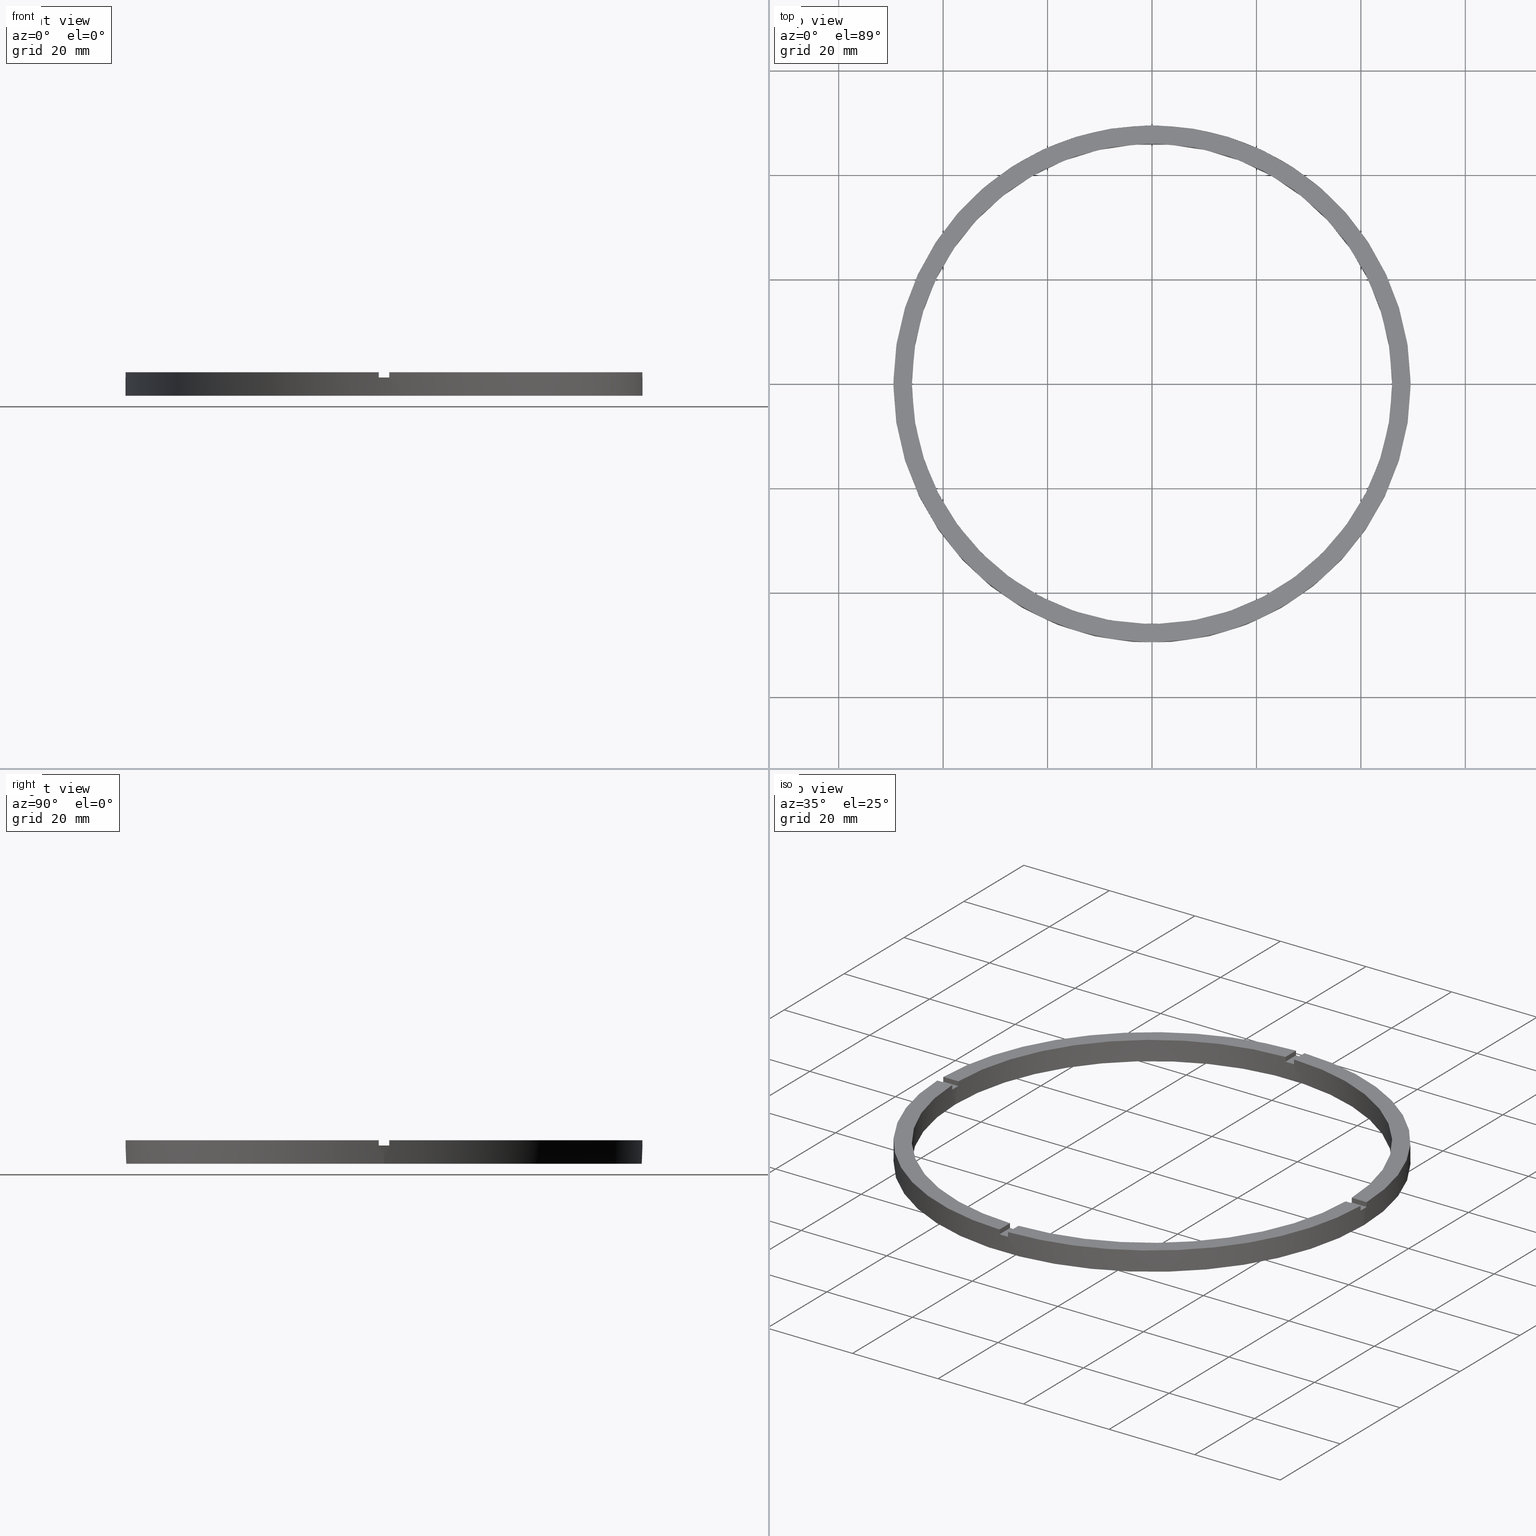
[diagram: canonical four-view strip — front | top / right | iso, engineering-drawing reading convention]
A machine part, canonical four-view strip (front | top / right | iso — engineering-drawing reading convention). The complete STEP part file that produces these views, byte-faithful:
ISO-10303-21;
HEADER;
FILE_DESCRIPTION (( 'STEP AP203' ),
    '1' );
FILE_NAME ('514202.step',
    '2024-12-26T02:47:34',
    ( 'MSI' ),
    ( '' ),
    'SwSTEP 2.0',
    'SolidWorks 2020',
    '' );
FILE_SCHEMA (( 'CONFIG_CONTROL_DESIGN' ));
ENDSEC;

DATA;
#1 = EDGE_CURVE ( 'NONE', #614, #634, #262, .T. ) ;
#2 = EDGE_LOOP ( 'NONE', ( #249, #684, #244, #5 ) ) ;
#3 = ORIENTED_EDGE ( 'NONE', *, *, #200, .F. ) ;
#4 = ORIENTED_EDGE ( 'NONE', *, *, #98, .T. ) ;
#5 = ORIENTED_EDGE ( 'NONE', *, *, #623, .F. ) ;
#6 = ORIENTED_EDGE ( 'NONE', *, *, #430, .T. ) ;
#7 = VERTEX_POINT ( 'NONE', #369 ) ;
#8 = PRODUCT_DEFINITION ( 'δ֪', '', #48, #263 ) ;
#9 = EDGE_LOOP ( 'NONE', ( #780, #115, #283, #127 ) ) ;
#10 = ADVANCED_BREP_SHAPE_REPRESENTATION ( '514202', ( #569, #740 ), #122 ) ;
#11 = DIRECTION ( 'NONE',  ( 0.000000000000000000, 0.000000000000000000, 1.000000000000000000 ) ) ;
#12 = LINE ( 'NONE', #435, #508 ) ;
#13 = CARTESIAN_POINT ( 'NONE',  ( 39.50000000000000000, -1.000000000000155875, 3.499999999999999556 ) ) ;
#14 = EDGE_LOOP ( 'NONE', ( #370, #530 ) ) ;
#15 = EDGE_LOOP ( 'NONE', ( #506, #765, #781, #270, #491, #246 ) ) ;
#16 = VECTOR ( 'NONE', #64, 1000.000000000000000 ) ;
#17 = ORIENTED_EDGE ( 'NONE', *, *, #602, .T. ) ;
#18 = COORDINATED_UNIVERSAL_TIME_OFFSET ( 8, 0, .AHEAD. ) ;
#19 = CARTESIAN_POINT ( 'NONE',  ( 46.00000000000000000, 5.633375276077824704E-15, 0.000000000000000000 ) ) ;
#20 = LOCAL_TIME ( 10, 47, 34.00000000000000000, #57 ) ;
#21 = CALENDAR_DATE ( 2024, 26, 12 ) ;
#22 = CC_DESIGN_SECURITY_CLASSIFICATION ( #269, ( #48 ) ) ;
#23 = ORIENTED_EDGE ( 'NONE', *, *, #480, .T. ) ;
#24 = VERTEX_POINT ( 'NONE', #621 ) ;
#25 = DATE_AND_TIME ( #524, #20 ) ;
#26 = ORIENTED_EDGE ( 'NONE', *, *, #469, .F. ) ;
#27 = LOCAL_TIME ( 10, 47, 34.00000000000000000, #548 ) ;
#28 = ORIENTED_EDGE ( 'NONE', *, *, #238, .F. ) ;
#29 = AXIS2_PLACEMENT_3D ( 'NONE', #514, #223, #214 ) ;
#30 = ORIENTED_EDGE ( 'NONE', *, *, #689, .F. ) ;
#31 = ORIENTED_EDGE ( 'NONE', *, *, #663, .F. ) ;
#32 = CARTESIAN_POINT ( 'NONE',  ( 0.9999999999999733546, 45.98912915026767223, 4.500000000000000000 ) ) ;
#33 = ORIENTED_EDGE ( 'NONE', *, *, #686, .F. ) ;
#34 = CARTESIAN_POINT ( 'NONE',  ( -49.50000000000000711, 0.000000000000000000, 0.000000000000000000 ) ) ;
#35 = DIRECTION ( 'NONE',  ( 1.301042606982605074E-16, -1.000000000000000000, 0.000000000000000000 ) ) ;
#36 = VERTEX_POINT ( 'NONE', #691 ) ;
#37 = EDGE_CURVE ( 'NONE', #638, #750, #271, .T. ) ;
#38 = APPROVAL_PERSON_ORGANIZATION ( #299, #287, #54 ) ;
#39 = EDGE_LOOP ( 'NONE', ( #538, #625, #248, #490 ) ) ;
#40 = EDGE_CURVE ( 'NONE', #169, #633, #507, .T. ) ;
#41 = LOCAL_TIME ( 10, 47, 34.00000000000000000, #306 ) ;
#42 = ORIENTED_EDGE ( 'NONE', *, *, #594, .T. ) ;
#43 = CARTESIAN_POINT ( 'NONE',  ( 39.50000000000000000, -1.000000000000155875, 4.500000000000000000 ) ) ;
#44 = ORGANIZATION ( 'δָ��', 'δָ��', '' ) ;
#45 = ORIENTED_EDGE ( 'NONE', *, *, #406, .T. ) ;
#46 = PERSON_AND_ORGANIZATION ( #355, #44 ) ;
#47 = AXIS2_PLACEMENT_3D ( 'NONE', #425, #534, #167 ) ;
#48 = PRODUCT_DEFINITION_FORMATION_WITH_SPECIFIED_SOURCE ( '�κ�', '', #591, .NOT_KNOWN. ) ;
#49 = PLANE ( 'NONE',  #329 ) ;
#50 = APPROVAL_DATE_TIME ( #519, #287 ) ;
#51 = CARTESIAN_POINT ( 'NONE',  ( 0.000000000000000000, 0.000000000000000000, 4.500000000000000000 ) ) ;
#52 = PERSON_AND_ORGANIZATION ( #355, #44 ) ;
#53 = DIRECTION ( 'NONE',  ( -0.000000000000000000, -0.000000000000000000, -1.000000000000000000 ) ) ;
#54 = APPROVAL_ROLE ( '' ) ;
#55 = PERSON_AND_ORGANIZATION ( #355, #44 ) ;
#56 = CARTESIAN_POINT ( 'NONE',  ( 45.98912915026767223, -1.000000000000155431, 4.500000000000000000 ) ) ;
#57 = COORDINATED_UNIVERSAL_TIME_OFFSET ( 8, 0, .AHEAD. ) ;
#58 = CARTESIAN_POINT ( 'NONE',  ( 0.000000000000000000, 0.000000000000000000, 3.499999999999999556 ) ) ;
#59 = DIRECTION ( 'NONE',  ( 1.000000000000000000, 0.000000000000000000, 0.000000000000000000 ) ) ;
#60 = APPROVAL_PERSON_ORGANIZATION ( #522, #725, #760 ) ;
#61 = DIRECTION ( 'NONE',  ( 0.000000000000000000, 0.000000000000000000, 1.000000000000000000 ) ) ;
#62 = AXIS2_PLACEMENT_3D ( 'NONE', #461, #106, #374 ) ;
#63 = CARTESIAN_POINT ( 'NONE',  ( -45.98912915026767223, -1.000000000000030420, 3.499999999999999556 ) ) ;
#64 = DIRECTION ( 'NONE',  ( -0.000000000000000000, -0.000000000000000000, -1.000000000000000000 ) ) ;
#65 = EDGE_CURVE ( 'NONE', #360, #742, #515, .T. ) ;
#66 = SHAPE_DEFINITION_REPRESENTATION ( #641, #10 ) ;
#67 = DIRECTION ( 'NONE',  ( -0.000000000000000000, -0.000000000000000000, -1.000000000000000000 ) ) ;
#68 = CALENDAR_DATE ( 2024, 26, 12 ) ;
#69 = CARTESIAN_POINT ( 'NONE',  ( -39.50000000000019185, 0.9999999999999708011, 3.499999999999999556 ) ) ;
#70 = CARTESIAN_POINT ( 'NONE',  ( 0.000000000000000000, 0.000000000000000000, 4.500000000000000000 ) ) ;
#71 = DIRECTION ( 'NONE',  ( -1.000000000000000000, 0.000000000000000000, 0.000000000000000000 ) ) ;
#72 = DIRECTION ( 'NONE',  ( 1.000000000000000000, 0.000000000000000000, 0.000000000000000000 ) ) ;
#73 = CIRCLE ( 'NONE', #776, 46.00000000000000000 ) ;
#74 = CARTESIAN_POINT ( 'NONE',  ( -46.00000000000000000, 0.000000000000000000, 3.499999999999999556 ) ) ;
#75 = EDGE_CURVE ( 'NONE', #221, #384, #12, .T. ) ;
#76 = LINE ( 'NONE', #196, #77 ) ;
#77 = VECTOR ( 'NONE', #605, 1000.000000000000000 ) ;
#78 = AXIS2_PLACEMENT_3D ( 'NONE', #550, #188, #35 ) ;
#79 = CARTESIAN_POINT ( 'NONE',  ( 0.000000000000000000, 0.000000000000000000, 3.499999999999999556 ) ) ;
#80 = PLANE ( 'NONE',  #95 ) ;
#81 = CARTESIAN_POINT ( 'NONE',  ( -1.000000000000026645, 49.48989795907849043, 4.500000000000000000 ) ) ;
#82 = AXIS2_PLACEMENT_3D ( 'NONE', #577, #376, #501 ) ;
#83 = CARTESIAN_POINT ( 'NONE',  ( 0.000000000000000000, 0.000000000000000000, 3.499999999999999556 ) ) ;
#84 = ADVANCED_FACE ( 'NONE', ( #268, #266 ), #309, .F. ) ;
#85 = CARTESIAN_POINT ( 'NONE',  ( 0.000000000000000000, 0.000000000000000000, 3.499999999999999556 ) ) ;
#86 = CARTESIAN_POINT ( 'NONE',  ( 0.9999999999999733546, 39.50000000000000711, 3.499999999999999556 ) ) ;
#87 = CARTESIAN_POINT ( 'NONE',  ( 0.000000000000000000, 0.000000000000000000, 3.499999999999999556 ) ) ;
#88 = DIRECTION ( 'NONE',  ( 1.000000000000000000, 6.505213034913025371E-17, 0.000000000000000000 ) ) ;
#89 = CARTESIAN_POINT ( 'NONE',  ( 0.000000000000000000, 0.000000000000000000, 0.000000000000000000 ) ) ;
#90 = EDGE_CURVE ( 'NONE', #302, #783, #511, .T. ) ;
#91 = CARTESIAN_POINT ( 'NONE',  ( -49.48989795907849043, -1.000000000000031308, 3.499999999999999556 ) ) ;
#92 = AXIS2_PLACEMENT_3D ( 'NONE', #599, #655, #311 ) ;
#93 = EDGE_CURVE ( 'NONE', #424, #757, #444, .T. ) ;
#94 = DIRECTION ( 'NONE',  ( 1.000000000000000000, 0.000000000000000000, -0.000000000000000000 ) ) ;
#95 = AXIS2_PLACEMENT_3D ( 'NONE', #230, #312, #337 ) ;
#96 = DIRECTION ( 'NONE',  ( 0.000000000000000000, -0.000000000000000000, 1.000000000000000000 ) ) ;
#97 = DIRECTION ( 'NONE',  ( 1.000000000000000000, 0.000000000000000000, 0.000000000000000000 ) ) ;
#98 = EDGE_CURVE ( 'NONE', #782, #364, #205, .T. ) ;
#99 = EDGE_CURVE ( 'NONE', #614, #633, #457, .T. ) ;
#100 = DIRECTION ( 'NONE',  ( 1.000000000000000000, 0.000000000000000000, 0.000000000000000000 ) ) ;
#101 = AXIS2_PLACEMENT_3D ( 'NONE', #222, #745, #668 ) ;
#102 = CARTESIAN_POINT ( 'NONE',  ( 0.000000000000000000, 0.000000000000000000, 3.499999999999999556 ) ) ;
#103 = CC_DESIGN_PERSON_AND_ORGANIZATION_ASSIGNMENT ( #529, #690, ( #8 ) ) ;
#104 = ADVANCED_FACE ( 'NONE', ( #191 ), #208, .T. ) ;
#105 = DIRECTION ( 'NONE',  ( -1.000000000000000000, -1.951563910473907735E-16, 0.000000000000000000 ) ) ;
#106 = DIRECTION ( 'NONE',  ( -6.505213034913025371E-17, 1.000000000000000000, 0.000000000000000000 ) ) ;
#107 = DATE_TIME_ROLE ( 'creation_date' ) ;
#108 = DIRECTION ( 'NONE',  ( 1.000000000000000000, -0.000000000000000000, 0.000000000000000000 ) ) ;
#109 = CARTESIAN_POINT ( 'NONE',  ( 0.9999999999998430145, -49.48989795907849043, 3.499999999999999556 ) ) ;
#110 = AXIS2_PLACEMENT_3D ( 'NONE', #711, #11, #596 ) ;
#111 = CARTESIAN_POINT ( 'NONE',  ( 0.9999999999999733546, 45.98912915026767223, 3.499999999999999556 ) ) ;
#112 = ORIENTED_EDGE ( 'NONE', *, *, #406, .F. ) ;
#113 = DIRECTION ( 'NONE',  ( 1.000000000000000000, 0.000000000000000000, 0.000000000000000000 ) ) ;
#114 = DIRECTION ( 'NONE',  ( 1.000000000000000000, 6.505213034913025371E-17, 0.000000000000000000 ) ) ;
#115 = ORIENTED_EDGE ( 'NONE', *, *, #124, .T. ) ;
#116 = EDGE_CURVE ( 'NONE', #661, #123, #186, .T. ) ;
#117 = AXIS2_PLACEMENT_3D ( 'NONE', #700, #443, #145 ) ;
#118 = CARTESIAN_POINT ( 'NONE',  ( -45.98912915026767223, 0.9999999999999696909, 4.500000000000000000 ) ) ;
#119 = EDGE_CURVE ( 'NONE', #424, #496, #193, .T. ) ;
#120 = ORIENTED_EDGE ( 'NONE', *, *, #124, .F. ) ;
#121 = AXIS2_PLACEMENT_3D ( 'NONE', #440, #497, #751 ) ;
#122 =( GEOMETRIC_REPRESENTATION_CONTEXT ( 3 ) GLOBAL_UNCERTAINTY_ASSIGNED_CONTEXT ( ( #316 ) ) GLOBAL_UNIT_ASSIGNED_CONTEXT ( ( #334, #492, #159 ) ) REPRESENTATION_CONTEXT ( 'NONE', 'WORKASPACE' ) );
#123 = VERTEX_POINT ( 'NONE', #626 ) ;
#124 = EDGE_CURVE ( 'NONE', #360, #750, #722, .T. ) ;
#125 = DIRECTION ( 'NONE',  ( 1.000000000000000000, 0.000000000000000000, -0.000000000000000000 ) ) ;
#126 = EDGE_CURVE ( 'NONE', #687, #504, #449, .T. ) ;
#127 = ORIENTED_EDGE ( 'NONE', *, *, #197, .F. ) ;
#128 = ORIENTED_EDGE ( 'NONE', *, *, #732, .T. ) ;
#129 = DIRECTION ( 'NONE',  ( 0.000000000000000000, 0.000000000000000000, 1.000000000000000000 ) ) ;
#130 = DIRECTION ( 'NONE',  ( 0.000000000000000000, 0.000000000000000000, 1.000000000000000000 ) ) ;
#131 = EDGE_LOOP ( 'NONE', ( #366, #4, #652, #613 ) ) ;
#132 = ORIENTED_EDGE ( 'NONE', *, *, #686, .T. ) ;
#133 = EDGE_LOOP ( 'NONE', ( #419, #240, #160, #227 ) ) ;
#134 = PLANE ( 'NONE',  #437 ) ;
#135 = DIRECTION ( 'NONE',  ( 0.000000000000000000, 0.000000000000000000, 1.000000000000000000 ) ) ;
#136 = APPLICATION_PROTOCOL_DEFINITION ( 'international standard', 'config_control_design', 1994, #211 ) ;
#137 = CARTESIAN_POINT ( 'NONE',  ( 0.000000000000000000, 0.000000000000000000, 3.499999999999999556 ) ) ;
#138 = CARTESIAN_POINT ( 'NONE',  ( 45.98912915026767223, -1.000000000000155431, 4.500000000000000000 ) ) ;
#139 = CYLINDRICAL_SURFACE ( 'NONE', #47, 46.00000000000000000 ) ;
#140 = ORIENTED_EDGE ( 'NONE', *, *, #343, .F. ) ;
#141 = LINE ( 'NONE', #597, #665 ) ;
#142 = CARTESIAN_POINT ( 'NONE',  ( -1.000000000000026645, 45.98912915026767223, 4.500000000000000000 ) ) ;
#143 = AXIS2_PLACEMENT_3D ( 'NONE', #137, #446, #566 ) ;
#144 = CARTESIAN_POINT ( 'NONE',  ( 0.000000000000000000, 0.000000000000000000, 3.499999999999999556 ) ) ;
#145 = DIRECTION ( 'NONE',  ( 1.000000000000000000, 0.000000000000000000, 0.000000000000000000 ) ) ;
#146 = PLANE ( 'NONE',  #82 ) ;
#147 = VERTEX_POINT ( 'NONE', #719 ) ;
#148 = VECTOR ( 'NONE', #114, 1000.000000000000000 ) ;
#149 = DIRECTION ( 'NONE',  ( 0.000000000000000000, 0.000000000000000000, 1.000000000000000000 ) ) ;
#150 = ORIENTED_EDGE ( 'NONE', *, *, #278, .T. ) ;
#151 = EDGE_CURVE ( 'NONE', #7, #631, #453, .T. ) ;
#152 = CIRCLE ( 'NONE', #773, 49.50000000000000711 ) ;
#153 = EDGE_CURVE ( 'NONE', #777, #36, #445, .T. ) ;
#154 = CARTESIAN_POINT ( 'NONE',  ( 0.9999999999998416822, -39.50000000000018474, 4.500000000000000000 ) ) ;
#155 = PERSON_AND_ORGANIZATION_ROLE ( 'design_owner' ) ;
#156 = AXIS2_PLACEMENT_3D ( 'NONE', #144, #347, #448 ) ;
#157 = EDGE_LOOP ( 'NONE', ( #286, #622, #150, #112 ) ) ;
#158 = CARTESIAN_POINT ( 'NONE',  ( 0.000000000000000000, 0.000000000000000000, 4.500000000000000000 ) ) ;
#159 =( NAMED_UNIT ( * ) SI_UNIT ( $, .STERADIAN. ) SOLID_ANGLE_UNIT ( ) );
#160 = ORIENTED_EDGE ( 'NONE', *, *, #291, .F. ) ;
#161 = CIRCLE ( 'NONE', #693, 49.50000000000000711 ) ;
#162 = EDGE_CURVE ( 'NONE', #7, #634, #201, .T. ) ;
#163 = ORIENTED_EDGE ( 'NONE', *, *, #729, .T. ) ;
#164 = ADVANCED_FACE ( 'NONE', ( #198 ), #539, .T. ) ;
#165 = ORIENTED_EDGE ( 'NONE', *, *, #327, .T. ) ;
#166 = ORIENTED_EDGE ( 'NONE', *, *, #90, .F. ) ;
#167 = DIRECTION ( 'NONE',  ( -1.000000000000000000, 0.000000000000000000, 0.000000000000000000 ) ) ;
#168 = ORIENTED_EDGE ( 'NONE', *, *, #402, .F. ) ;
#169 = VERTEX_POINT ( 'NONE', #19 ) ;
#170 = ORIENTED_EDGE ( 'NONE', *, *, #474, .T. ) ;
#171 = EDGE_CURVE ( 'NONE', #24, #762, #451, .T. ) ;
#172 = CARTESIAN_POINT ( 'NONE',  ( -49.50000000000000711, 0.000000000000000000, 3.499999999999999556 ) ) ;
#173 = VECTOR ( 'NONE', #567, 1000.000000000000000 ) ;
#174 = FACE_OUTER_BOUND ( 'NONE', #289, .T. ) ;
#175 = FACE_OUTER_BOUND ( 'NONE', #500, .T. ) ;
#176 = LINE ( 'NONE', #628, #180 ) ;
#177 = ADVANCED_FACE ( 'NONE', ( #395 ), #463, .T. ) ;
#178 = CC_DESIGN_APPROVAL ( #725, ( #269 ) ) ;
#179 = VECTOR ( 'NONE', #766, 1000.000000000000000 ) ;
#180 = VECTOR ( 'NONE', #217, 1000.000000000000000 ) ;
#181 = LINE ( 'NONE', #611, #459 ) ;
#182 = DIRECTION ( 'NONE',  ( 1.000000000000000000, 1.951563910473907735E-16, 0.000000000000000000 ) ) ;
#183 = LINE ( 'NONE', #713, #458 ) ;
#184 = VECTOR ( 'NONE', #746, 1000.000000000000000 ) ;
#185 = LINE ( 'NONE', #619, #442 ) ;
#186 = LINE ( 'NONE', #380, #717 ) ;
#187 = VECTOR ( 'NONE', #53, 1000.000000000000000 ) ;
#188 = DIRECTION ( 'NONE',  ( -1.000000000000000000, -1.301042606982605074E-16, 0.000000000000000000 ) ) ;
#189 = VECTOR ( 'NONE', #546, 1000.000000000000000 ) ;
#190 = VECTOR ( 'NONE', #618, 1000.000000000000000 ) ;
#191 = FACE_OUTER_BOUND ( 'NONE', #627, .T. ) ;
#192 = LINE ( 'NONE', #69, #426 ) ;
#193 = CIRCLE ( 'NONE', #388, 49.50000000000000711 ) ;
#194 = VECTOR ( 'NONE', #775, 1000.000000000000000 ) ;
#195 = DIRECTION ( 'NONE',  ( 1.000000000000000000, 0.000000000000000000, 0.000000000000000000 ) ) ;
#196 = CARTESIAN_POINT ( 'NONE',  ( -1.000000000000158318, -39.50000000000018474, 3.499999999999999556 ) ) ;
#197 = EDGE_CURVE ( 'NONE', #479, #774, #658, .T. ) ;
#198 = FACE_OUTER_BOUND ( 'NONE', #15, .T. ) ;
#199 = CARTESIAN_POINT ( 'NONE',  ( 0.000000000000000000, 0.000000000000000000, 3.499999999999999556 ) ) ;
#200 = EDGE_CURVE ( 'NONE', #479, #147, #375, .T. ) ;
#201 = LINE ( 'NONE', #531, #720 ) ;
#202 = FACE_OUTER_BOUND ( 'NONE', #292, .T. ) ;
#203 = VECTOR ( 'NONE', #135, 1000.000000000000000 ) ;
#204 = VECTOR ( 'NONE', #88, 1000.000000000000000 ) ;
#205 = LINE ( 'NONE', #56, #203 ) ;
#206 = CYLINDRICAL_SURFACE ( 'NONE', #320, 49.50000000000000711 ) ;
#207 = DIRECTION ( 'NONE',  ( 0.000000000000000000, 0.000000000000000000, -1.000000000000000000 ) ) ;
#208 = PLANE ( 'NONE',  #276 ) ;
#209 = AXIS2_PLACEMENT_3D ( 'NONE', #624, #382, #307 ) ;
#210 = LINE ( 'NONE', #493, #173 ) ;
#211 = APPLICATION_CONTEXT ( 'configuration controlled 3d designs of mechanical parts and assemblies' ) ;
#212 = LINE ( 'NONE', #386, #194 ) ;
#213 = FACE_OUTER_BOUND ( 'NONE', #250, .T. ) ;
#214 = DIRECTION ( 'NONE',  ( 1.000000000000000000, 0.000000000000000000, 0.000000000000000000 ) ) ;
#215 = PERSON_AND_ORGANIZATION_ROLE ( 'creator' ) ;
#216 = CARTESIAN_POINT ( 'NONE',  ( 46.00000000000000000, 5.633375276077824704E-15, 3.499999999999999556 ) ) ;
#217 = DIRECTION ( 'NONE',  ( 1.000000000000000000, 1.951563910473907735E-16, -0.000000000000000000 ) ) ;
#218 = ADVANCED_FACE ( 'NONE', ( #656 ), #559, .F. ) ;
#219 = DIRECTION ( 'NONE',  ( 0.000000000000000000, 1.000000000000000000, 0.000000000000000000 ) ) ;
#220 = APPROVAL_ROLE ( '' ) ;
#221 = VERTEX_POINT ( 'NONE', #608 ) ;
#222 = CARTESIAN_POINT ( 'NONE',  ( 0.000000000000000000, 0.000000000000000000, 4.500000000000000000 ) ) ;
#223 = DIRECTION ( 'NONE',  ( -0.000000000000000000, 0.000000000000000000, 1.000000000000000000 ) ) ;
#224 = PERSON_AND_ORGANIZATION_ROLE ( 'design_supplier' ) ;
#225 = AXIS2_PLACEMENT_3D ( 'NONE', #754, #149, #761 ) ;
#226 = CARTESIAN_POINT ( 'NONE',  ( -1.000000000000156986, -49.48989795907849043, 4.500000000000000000 ) ) ;
#227 = ORIENTED_EDGE ( 'NONE', *, *, #595, .F. ) ;
#228 = CARTESIAN_POINT ( 'NONE',  ( -49.48989795907849043, 0.9999999999999688027, 4.500000000000000000 ) ) ;
#229 = AXIS2_PLACEMENT_3D ( 'NONE', #509, #284, #678 ) ;
#230 = CARTESIAN_POINT ( 'NONE',  ( 0.000000000000000000, 0.000000000000000000, 4.500000000000000000 ) ) ;
#231 = VERTEX_POINT ( 'NONE', #245 ) ;
#232 = ORIENTED_EDGE ( 'NONE', *, *, #151, .F. ) ;
#233 = ORIENTED_EDGE ( 'NONE', *, *, #126, .F. ) ;
#234 = ADVANCED_FACE ( 'NONE', ( #657 ), #726, .F. ) ;
#235 = CARTESIAN_POINT ( 'NONE',  ( -1.000000000000158318, -39.50000000000018474, 4.500000000000000000 ) ) ;
#236 = EDGE_CURVE ( 'NONE', #302, #757, #152, .T. ) ;
#237 = ORIENTED_EDGE ( 'NONE', *, *, #278, .F. ) ;
#238 = EDGE_CURVE ( 'NONE', #777, #302, #396, .T. ) ;
#239 = ORIENTED_EDGE ( 'NONE', *, *, #349, .F. ) ;
#240 = ORIENTED_EDGE ( 'NONE', *, *, #391, .T. ) ;
#241 = ORIENTED_EDGE ( 'NONE', *, *, #197, .T. ) ;
#242 = ADVANCED_FACE ( 'NONE', ( #399 ), #139, .F. ) ;
#243 = CC_DESIGN_PERSON_AND_ORGANIZATION_ASSIGNMENT ( #541, #155, ( #591 ) ) ;
#244 = ORIENTED_EDGE ( 'NONE', *, *, #480, .F. ) ;
#245 = CARTESIAN_POINT ( 'NONE',  ( -1.000000000000026645, 45.98912915026767223, 3.499999999999999556 ) ) ;
#246 = ORIENTED_EDGE ( 'NONE', *, *, #294, .T. ) ;
#247 = EDGE_LOOP ( 'NONE', ( #659, #485, #510, #412, #140, #17 ) ) ;
#248 = ORIENTED_EDGE ( 'NONE', *, *, #607, .F. ) ;
#249 = ORIENTED_EDGE ( 'NONE', *, *, #607, .T. ) ;
#250 = EDGE_LOOP ( 'NONE', ( #502, #23, #383, #251 ) ) ;
#251 = ORIENTED_EDGE ( 'NONE', *, *, #767, .T. ) ;
#252 = ORIENTED_EDGE ( 'NONE', *, *, #583, .T. ) ;
#253 = ORIENTED_EDGE ( 'NONE', *, *, #65, .F. ) ;
#254 = ORIENTED_EDGE ( 'NONE', *, *, #116, .F. ) ;
#255 = ORIENTED_EDGE ( 'NONE', *, *, #430, .F. ) ;
#256 = ORIENTED_EDGE ( 'NONE', *, *, #595, .T. ) ;
#257 = AXIS2_PLACEMENT_3D ( 'NONE', #598, #734, #554 ) ;
#258 = VERTEX_POINT ( 'NONE', #470 ) ;
#259 = ORIENTED_EDGE ( 'NONE', *, *, #171, .T. ) ;
#260 = ORIENTED_EDGE ( 'NONE', *, *, #314, .T. ) ;
#261 = CARTESIAN_POINT ( 'NONE',  ( -1.000000000000026645, 39.50000000000000711, 3.499999999999999556 ) ) ;
#262 = CIRCLE ( 'NONE', #749, 46.00000000000000000 ) ;
#263 = DESIGN_CONTEXT ( 'detailed design', #377, 'design' ) ;
#264 = ORIENTED_EDGE ( 'NONE', *, *, #602, .F. ) ;
#265 = DIRECTION ( 'NONE',  ( 0.000000000000000000, 0.000000000000000000, 1.000000000000000000 ) ) ;
#266 = FACE_BOUND ( 'NONE', #664, .T. ) ;
#267 = ORIENTED_EDGE ( 'NONE', *, *, #99, .T. ) ;
#268 = FACE_OUTER_BOUND ( 'NONE', #14, .T. ) ;
#269 = SECURITY_CLASSIFICATION ( '', '', #516 ) ;
#270 = ORIENTED_EDGE ( 'NONE', *, *, #37, .F. ) ;
#271 = CIRCLE ( 'NONE', #225, 46.00000000000000000 ) ;
#272 = VERTEX_POINT ( 'NONE', #111 ) ;
#273 = ORIENTED_EDGE ( 'NONE', *, *, #291, .T. ) ;
#274 = EDGE_CURVE ( 'NONE', #757, #634, #141, .T. ) ;
#275 = DIRECTION ( 'NONE',  ( 1.000000000000000000, 0.000000000000000000, -0.000000000000000000 ) ) ;
#276 = AXIS2_PLACEMENT_3D ( 'NONE', #639, #344, #275 ) ;
#277 = LOCAL_TIME ( 10, 47, 34.00000000000000000, #18 ) ;
#278 = EDGE_CURVE ( 'NONE', #631, #496, #401, .T. ) ;
#279 = DATE_TIME_ROLE ( 'classification_date' ) ;
#280 = DATE_AND_TIME ( #21, #277 ) ;
#281 = ORIENTED_EDGE ( 'NONE', *, *, #651, .T. ) ;
#282 = AXIS2_PLACEMENT_3D ( 'NONE', #285, #129, #195 ) ;
#283 = ORIENTED_EDGE ( 'NONE', *, *, #325, .F. ) ;
#284 = DIRECTION ( 'NONE',  ( -0.000000000000000000, -0.000000000000000000, -1.000000000000000000 ) ) ;
#285 = CARTESIAN_POINT ( 'NONE',  ( 0.000000000000000000, 0.000000000000000000, 0.000000000000000000 ) ) ;
#286 = ORIENTED_EDGE ( 'NONE', *, *, #767, .F. ) ;
#287 = APPROVAL ( #620, 'δָ��' ) ;
#288 = DIRECTION ( 'NONE',  ( 1.000000000000000000, 0.000000000000000000, 0.000000000000000000 ) ) ;
#289 = EDGE_LOOP ( 'NONE', ( #295, #635, #680, #166, #28, #498, #675, #256, #482, #475, #3, #241 ) ) ;
#290 = ORIENTED_EDGE ( 'NONE', *, *, #151, .T. ) ;
#291 = EDGE_CURVE ( 'NONE', #762, #231, #403, .T. ) ;
#292 = EDGE_LOOP ( 'NONE', ( #359, #31, #42, #233, #647, #533, #45, #368, #478, #536, #650, #753 ) ) ;
#293 = DIRECTION ( 'NONE',  ( 0.000000000000000000, 0.000000000000000000, 1.000000000000000000 ) ) ;
#294 = EDGE_CURVE ( 'NONE', #782, #258, #666, .T. ) ;
#295 = ORIENTED_EDGE ( 'NONE', *, *, #345, .F. ) ;
#296 = CALENDAR_DATE ( 2024, 26, 12 ) ;
#297 = VERTEX_POINT ( 'NONE', #81 ) ;
#298 = ORIENTED_EDGE ( 'NONE', *, *, #200, .T. ) ;
#299 = PERSON_AND_ORGANIZATION ( #355, #44 ) ;
#300 = ORIENTED_EDGE ( 'NONE', *, *, #99, .F. ) ;
#301 = CARTESIAN_POINT ( 'NONE',  ( 0.000000000000000000, 0.000000000000000000, 0.000000000000000000 ) ) ;
#302 = VERTEX_POINT ( 'NONE', #172 ) ;
#303 = ORIENTED_EDGE ( 'NONE', *, *, #651, .F. ) ;
#304 = DIRECTION ( 'NONE',  ( -1.301042606982605074E-16, 1.000000000000000000, -0.000000000000000000 ) ) ;
#305 = DIRECTION ( 'NONE',  ( 1.000000000000000000, 0.000000000000000000, 0.000000000000000000 ) ) ;
#306 = COORDINATED_UNIVERSAL_TIME_OFFSET ( 8, 0, .AHEAD. ) ;
#307 = DIRECTION ( 'NONE',  ( -1.000000000000000000, -1.951563910473907735E-16, 0.000000000000000000 ) ) ;
#308 = APPROVAL_STATUS ( 'not_yet_approved' ) ;
#309 = PLANE ( 'NONE',  #584 ) ;
#310 = COORDINATED_UNIVERSAL_TIME_OFFSET ( 8, 0, .AHEAD. ) ;
#311 = DIRECTION ( 'NONE',  ( 1.000000000000000000, 0.000000000000000000, -0.000000000000000000 ) ) ;
#312 = DIRECTION ( 'NONE',  ( 0.000000000000000000, 0.000000000000000000, 1.000000000000000000 ) ) ;
#313 = ADVANCED_FACE ( 'NONE', ( #413 ), #352, .F. ) ;
#314 = EDGE_CURVE ( 'NONE', #272, #231, #698, .T. ) ;
#315 = DIRECTION ( 'NONE',  ( -0.000000000000000000, -1.000000000000000000, -0.000000000000000000 ) ) ;
#316 = UNCERTAINTY_MEASURE_WITH_UNIT (LENGTH_MEASURE( 1.000000000000000082E-05 ), #334, 'distance_accuracy_value', 'NONE');
#317 = DIRECTION ( 'NONE',  ( 1.000000000000000000, 1.301042606982605074E-16, 0.000000000000000000 ) ) ;
#318 = EDGE_CURVE ( 'NONE', #272, #24, #706, .T. ) ;
#319 = EDGE_CURVE ( 'NONE', #646, #367, #418, .T. ) ;
#320 = AXIS2_PLACEMENT_3D ( 'NONE', #759, #67, #404 ) ;
#321 = FACE_OUTER_BOUND ( 'NONE', #9, .T. ) ;
#322 = LINE ( 'NONE', #32, #324 ) ;
#323 = FACE_OUTER_BOUND ( 'NONE', #133, .T. ) ;
#324 = VECTOR ( 'NONE', #330, 1000.000000000000000 ) ;
#325 = EDGE_CURVE ( 'NONE', #774, #750, #683, .T. ) ;
#326 = DIRECTION ( 'NONE',  ( 1.000000000000000000, 0.000000000000000000, 0.000000000000000000 ) ) ;
#327 = EDGE_CURVE ( 'NONE', #297, #36, #673, .T. ) ;
#328 = DIRECTION ( 'NONE',  ( -1.301042606982605074E-16, 1.000000000000000000, -0.000000000000000000 ) ) ;
#329 = AXIS2_PLACEMENT_3D ( 'NONE', #670, #741, #428 ) ;
#330 = DIRECTION ( 'NONE',  ( 0.000000000000000000, 0.000000000000000000, 1.000000000000000000 ) ) ;
#331 = DIRECTION ( 'NONE',  ( 0.000000000000000000, 0.000000000000000000, 1.000000000000000000 ) ) ;
#332 = CARTESIAN_POINT ( 'NONE',  ( -39.50000000000019185, -1.000000000000029310, 3.499999999999999556 ) ) ;
#333 = CC_DESIGN_DATE_AND_TIME_ASSIGNMENT ( #280, #279, ( #269 ) ) ;
#335 = DIRECTION ( 'NONE',  ( 0.000000000000000000, 0.000000000000000000, 1.000000000000000000 ) ) ;
#334 =( LENGTH_UNIT ( ) NAMED_UNIT ( * ) SI_UNIT ( .MILLI., .METRE. ) );
#336 = DIRECTION ( 'NONE',  ( 0.000000000000000000, 0.000000000000000000, 1.000000000000000000 ) ) ;
#337 = DIRECTION ( 'NONE',  ( 1.000000000000000000, 0.000000000000000000, -0.000000000000000000 ) ) ;
#338 = CARTESIAN_POINT ( 'NONE',  ( 0.9999999999998425704, -45.98912915026767934, 4.500000000000000000 ) ) ;
#339 = DIRECTION ( 'NONE',  ( 0.000000000000000000, 0.000000000000000000, 1.000000000000000000 ) ) ;
#340 = CARTESIAN_POINT ( 'NONE',  ( 0.9999999999998430145, -49.48989795907849043, 4.500000000000000000 ) ) ;
#341 = CARTESIAN_POINT ( 'NONE',  ( -49.48989795907849043, -1.000000000000031308, 4.500000000000000000 ) ) ;
#342 = CARTESIAN_POINT ( 'NONE',  ( 39.50000000000000000, 0.9999999999998441247, 3.499999999999999556 ) ) ;
#343 = EDGE_CURVE ( 'NONE', #643, #614, #677, .T. ) ;
#344 = DIRECTION ( 'NONE',  ( 0.000000000000000000, 0.000000000000000000, 1.000000000000000000 ) ) ;
#345 = EDGE_CURVE ( 'NONE', #221, #774, #161, .T. ) ;
#346 = DIRECTION ( 'NONE',  ( 0.000000000000000000, 0.000000000000000000, 1.000000000000000000 ) ) ;
#347 = DIRECTION ( 'NONE',  ( 0.000000000000000000, 0.000000000000000000, 1.000000000000000000 ) ) ;
#348 = PERSON_AND_ORGANIZATION_ROLE ( 'classification_officer' ) ;
#349 = EDGE_CURVE ( 'NONE', #297, #495, #438, .T. ) ;
#350 = DIRECTION ( 'NONE',  ( -0.000000000000000000, -0.000000000000000000, -1.000000000000000000 ) ) ;
#351 = CC_DESIGN_PERSON_AND_ORGANIZATION_ASSIGNMENT ( #55, #348, ( #269 ) ) ;
#352 = PLANE ( 'NONE',  #433 ) ;
#353 = EDGE_CURVE ( 'NONE', #384, #783, #420, .T. ) ;
#354 = DIRECTION ( 'NONE',  ( 0.000000000000000000, 0.000000000000000000, 1.000000000000000000 ) ) ;
#355 = PERSON ( 'δָ��', 'δָ��', 'δָ��', ('δָ��'), ('δָ��'), ('δָ��') ) ;
#356 = AXIS2_PLACEMENT_3D ( 'NONE', #79, #354, #125 ) ;
#357 = ORIENTED_EDGE ( 'NONE', *, *, #343, .T. ) ;
#358 = CARTESIAN_POINT ( 'NONE',  ( -1.000000000000157430, -45.98912915026767223, 3.499999999999999556 ) ) ;
#359 = ORIENTED_EDGE ( 'NONE', *, *, #75, .F. ) ;
#360 = VERTEX_POINT ( 'NONE', #373 ) ;
#361 = CARTESIAN_POINT ( 'NONE',  ( -1.000000000000157430, -45.98912915026767223, 4.500000000000000000 ) ) ;
#362 = ORIENTED_EDGE ( 'NONE', *, *, #119, .T. ) ;
#363 = CARTESIAN_POINT ( 'NONE',  ( 49.48989795907849043, 0.9999999999998447908, 3.499999999999999556 ) ) ;
#364 = VERTEX_POINT ( 'NONE', #138 ) ;
#365 = DIRECTION ( 'NONE',  ( 1.000000000000000000, 0.000000000000000000, 0.000000000000000000 ) ) ;
#366 = ORIENTED_EDGE ( 'NONE', *, *, #294, .F. ) ;
#367 = VERTEX_POINT ( 'NONE', #109 ) ;
#368 = ORIENTED_EDGE ( 'NONE', *, *, #119, .F. ) ;
#369 = CARTESIAN_POINT ( 'NONE',  ( -45.98912915026767223, -1.000000000000030420, 4.500000000000000000 ) ) ;
#370 = ORIENTED_EDGE ( 'NONE', *, *, #387, .F. ) ;
#371 = CARTESIAN_POINT ( 'NONE',  ( 0.9999999999998416822, -39.50000000000018474, 3.499999999999999556 ) ) ;
#372 = ORIENTED_EDGE ( 'NONE', *, *, #764, .F. ) ;
#373 = CARTESIAN_POINT ( 'NONE',  ( 45.98912915026767934, 0.9999999999998445688, 4.500000000000000000 ) ) ;
#374 = DIRECTION ( 'NONE',  ( -1.000000000000000000, -6.505213034913025371E-17, 0.000000000000000000 ) ) ;
#375 = CIRCLE ( 'NONE', #257, 49.50000000000000711 ) ;
#376 = DIRECTION ( 'NONE',  ( -0.000000000000000000, 0.000000000000000000, 1.000000000000000000 ) ) ;
#377 = APPLICATION_CONTEXT ( 'configuration controlled 3d designs of mechanical parts and assemblies' ) ;
#378 = PLANE ( 'NONE',  #209 ) ;
#379 = EDGE_LOOP ( 'NONE', ( #239, #165, #30, #303 ) ) ;
#380 = CARTESIAN_POINT ( 'NONE',  ( 0.9999999999998425704, -45.98912915026767934, 4.500000000000000000 ) ) ;
#381 = DIRECTION ( 'NONE',  ( -1.301042606982605074E-16, 1.000000000000000000, 0.000000000000000000 ) ) ;
#382 = DIRECTION ( 'NONE',  ( -1.951563910473907735E-16, 1.000000000000000000, 0.000000000000000000 ) ) ;
#383 = ORIENTED_EDGE ( 'NONE', *, *, #732, .F. ) ;
#384 = VERTEX_POINT ( 'NONE', #464 ) ;
#385 = ADVANCED_FACE ( 'NONE', ( #414 ), #80, .T. ) ;
#386 = CARTESIAN_POINT ( 'NONE',  ( 39.50000000000000000, 0.9999999999998441247, 4.500000000000000000 ) ) ;
#387 = EDGE_CURVE ( 'NONE', #783, #384, #415, .T. ) ;
#388 = AXIS2_PLACEMENT_3D ( 'NONE', #432, #336, #512 ) ;
#389 = CARTESIAN_POINT ( 'NONE',  ( -46.00000000000000000, 0.000000000000000000, 4.500000000000000000 ) ) ;
#390 = DIRECTION ( 'NONE',  ( 1.000000000000000000, 0.000000000000000000, 0.000000000000000000 ) ) ;
#391 = EDGE_CURVE ( 'NONE', #495, #231, #681, .T. ) ;
#392 = CARTESIAN_POINT ( 'NONE',  ( 0.000000000000000000, 0.000000000000000000, 4.500000000000000000 ) ) ;
#393 = CARTESIAN_POINT ( 'NONE',  ( 0.000000000000000000, 0.000000000000000000, 3.499999999999999556 ) ) ;
#394 = AXIS2_PLACEMENT_3D ( 'NONE', #199, #265, #365 ) ;
#395 = FACE_OUTER_BOUND ( 'NONE', #247, .T. ) ;
#396 = CIRCLE ( 'NONE', #394, 49.50000000000000711 ) ;
#397 = DIRECTION ( 'NONE',  ( 0.000000000000000000, 0.000000000000000000, 1.000000000000000000 ) ) ;
#398 = ORIENTED_EDGE ( 'NONE', *, *, #153, .F. ) ;
#399 = FACE_OUTER_BOUND ( 'NONE', #484, .T. ) ;
#400 = ORIENTED_EDGE ( 'NONE', *, *, #65, .T. ) ;
#401 = LINE ( 'NONE', #235, #660 ) ;
#402 = EDGE_CURVE ( 'NONE', #24, #147, #712, .T. ) ;
#403 = LINE ( 'NONE', #407, #411 ) ;
#404 = DIRECTION ( 'NONE',  ( -1.000000000000000000, 0.000000000000000000, 0.000000000000000000 ) ) ;
#405 = DIRECTION ( 'NONE',  ( 0.000000000000000000, 0.000000000000000000, 1.000000000000000000 ) ) ;
#406 = EDGE_CURVE ( 'NONE', #646, #496, #694, .T. ) ;
#407 = CARTESIAN_POINT ( 'NONE',  ( -1.000000000000026645, 39.50000000000000711, 3.499999999999999556 ) ) ;
#408 = ORIENTED_EDGE ( 'NONE', *, *, #93, .F. ) ;
#409 = AXIS2_PLACEMENT_3D ( 'NONE', #301, #705, #288 ) ;
#410 = ORIENTED_EDGE ( 'NONE', *, *, #469, .T. ) ;
#411 = VECTOR ( 'NONE', #315, 1000.000000000000000 ) ;
#412 = ORIENTED_EDGE ( 'NONE', *, *, #1, .F. ) ;
#413 = FACE_OUTER_BOUND ( 'NONE', #2, .T. ) ;
#414 = FACE_OUTER_BOUND ( 'NONE', #39, .T. ) ;
#415 = CIRCLE ( 'NONE', #121, 49.50000000000000711 ) ;
#416 = ORIENTED_EDGE ( 'NONE', *, *, #729, .F. ) ;
#417 = ORIENTED_EDGE ( 'NONE', *, *, #676, .T. ) ;
#418 = CIRCLE ( 'NONE', #29, 49.50000000000000711 ) ;
#419 = ORIENTED_EDGE ( 'NONE', *, *, #349, .T. ) ;
#420 = CIRCLE ( 'NONE', #409, 49.50000000000000711 ) ;
#421 = ORIENTED_EDGE ( 'NONE', *, *, #98, .F. ) ;
#422 = PLANE ( 'NONE',  #549 ) ;
#423 = ORIENTED_EDGE ( 'NONE', *, *, #612, .F. ) ;
#424 = VERTEX_POINT ( 'NONE', #645 ) ;
#425 = CARTESIAN_POINT ( 'NONE',  ( 0.000000000000000000, 0.000000000000000000, 4.500000000000000000 ) ) ;
#426 = VECTOR ( 'NONE', #105, 1000.000000000000000 ) ;
#427 = LINE ( 'NONE', #43, #204 ) ;
#428 = DIRECTION ( 'NONE',  ( 1.000000000000000000, 6.505213034913025371E-17, 0.000000000000000000 ) ) ;
#429 = LINE ( 'NONE', #702, #723 ) ;
#430 = EDGE_CURVE ( 'NONE', #638, #169, #183, .T. ) ;
#431 = PLANE ( 'NONE',  #101 ) ;
#432 = CARTESIAN_POINT ( 'NONE',  ( 0.000000000000000000, 0.000000000000000000, 4.500000000000000000 ) ) ;
#433 = AXIS2_PLACEMENT_3D ( 'NONE', #468, #317, #381 ) ;
#434 = CIRCLE ( 'NONE', #282, 46.00000000000000000 ) ;
#435 = CARTESIAN_POINT ( 'NONE',  ( 49.50000000000000711, 6.062001655779399300E-15, 4.500000000000000000 ) ) ;
#436 = LINE ( 'NONE', #371, #724 ) ;
#437 = AXIS2_PLACEMENT_3D ( 'NONE', #261, #603, #331 ) ;
#438 = LINE ( 'NONE', #460, #708 ) ;
#439 = CIRCLE ( 'NONE', #736, 46.00000000000000000 ) ;
#440 = CARTESIAN_POINT ( 'NONE',  ( 0.000000000000000000, 0.000000000000000000, 0.000000000000000000 ) ) ;
#441 = VECTOR ( 'NONE', #561, 1000.000000000000000 ) ;
#442 = VECTOR ( 'NONE', #503, 1000.000000000000000 ) ;
#443 = DIRECTION ( 'NONE',  ( 0.000000000000000000, 0.000000000000000000, 1.000000000000000000 ) ) ;
#444 = LINE ( 'NONE', #341, #441 ) ;
#445 = LINE ( 'NONE', #228, #714 ) ;
#446 = DIRECTION ( 'NONE',  ( 0.000000000000000000, -0.000000000000000000, 1.000000000000000000 ) ) ;
#447 = FACE_OUTER_BOUND ( 'NONE', #379, .T. ) ;
#448 = DIRECTION ( 'NONE',  ( 1.000000000000000000, 0.000000000000000000, 0.000000000000000000 ) ) ;
#449 = CIRCLE ( 'NONE', #110, 49.50000000000000711 ) ;
#450 = APPROVAL ( #308, 'δָ��' ) ;
#451 = CIRCLE ( 'NONE', #572, 49.50000000000000711 ) ;
#452 = CARTESIAN_POINT ( 'NONE',  ( 0.000000000000000000, 0.000000000000000000, 4.500000000000000000 ) ) ;
#453 = CIRCLE ( 'NONE', #715, 46.00000000000000000 ) ;
#454 = LINE ( 'NONE', #118, #189 ) ;
#455 = DIRECTION ( 'NONE',  ( -0.000000000000000000, -0.000000000000000000, -1.000000000000000000 ) ) ;
#456 = CYLINDRICAL_SURFACE ( 'NONE', #229, 49.50000000000000711 ) ;
#457 = LINE ( 'NONE', #389, #728 ) ;
#458 = VECTOR ( 'NONE', #688, 1000.000000000000000 ) ;
#459 = VECTOR ( 'NONE', #747, 1000.000000000000000 ) ;
#460 = CARTESIAN_POINT ( 'NONE',  ( -1.000000000000026645, 39.50000000000000711, 4.500000000000000000 ) ) ;
#461 = CARTESIAN_POINT ( 'NONE',  ( 39.50000000000000000, 0.9999999999998441247, 3.499999999999999556 ) ) ;
#462 = FACE_OUTER_BOUND ( 'NONE', #523, .T. ) ;
#463 = PLANE ( 'NONE',  #356 ) ;
#464 = CARTESIAN_POINT ( 'NONE',  ( 49.50000000000000711, 6.062001655779399300E-15, 0.000000000000000000 ) ) ;
#465 = ADVANCED_FACE ( 'NONE', ( #174 ), #206, .T. ) ;
#466 = AXIS2_PLACEMENT_3D ( 'NONE', #51, #679, #94 ) ;
#467 = DIRECTION ( 'NONE',  ( 0.000000000000000000, 0.000000000000000000, 1.000000000000000000 ) ) ;
#468 = CARTESIAN_POINT ( 'NONE',  ( 0.9999999999998416822, -39.50000000000018474, 3.499999999999999556 ) ) ;
#469 = EDGE_CURVE ( 'NONE', #643, #471, #454, .T. ) ;
#470 = CARTESIAN_POINT ( 'NONE',  ( 49.48989795907849043, -1.000000000000155209, 3.499999999999999556 ) ) ;
#471 = VERTEX_POINT ( 'NONE', #526 ) ;
#472 = AXIS2_PLACEMENT_3D ( 'NONE', #58, #397, #579 ) ;
#473 = CC_DESIGN_APPROVAL ( #450, ( #8 ) ) ;
#474 = EDGE_CURVE ( 'NONE', #661, #364, #716, .T. ) ;
#475 = ORIENTED_EDGE ( 'NONE', *, *, #402, .T. ) ;
#476 = ORIENTED_EDGE ( 'NONE', *, *, #274, .F. ) ;
#477 = ORIENTED_EDGE ( 'NONE', *, *, #1, .T. ) ;
#478 = ORIENTED_EDGE ( 'NONE', *, *, #93, .T. ) ;
#479 = VERTEX_POINT ( 'NONE', #520 ) ;
#480 = EDGE_CURVE ( 'NONE', #367, #123, #436, .T. ) ;
#481 = CARTESIAN_POINT ( 'NONE',  ( -1.000000000000026645, 49.48989795907849043, 3.499999999999999556 ) ) ;
#482 = ORIENTED_EDGE ( 'NONE', *, *, #171, .F. ) ;
#483 = CARTESIAN_POINT ( 'NONE',  ( 45.98912915026767223, -1.000000000000155431, 3.499999999999999556 ) ) ;
#484 = EDGE_LOOP ( 'NONE', ( #255, #653, #120, #400, #416, #260, #525, #281, #26, #357, #267, #667 ) ) ;
#485 = ORIENTED_EDGE ( 'NONE', *, *, #236, .T. ) ;
#486 = ORIENTED_EDGE ( 'NONE', *, *, #162, .T. ) ;
#487 = DIRECTION ( 'NONE',  ( -0.000000000000000000, 0.000000000000000000, 1.000000000000000000 ) ) ;
#488 = EDGE_LOOP ( 'NONE', ( #132, #486, #476, #408 ) ) ;
#489 = ORIENTED_EDGE ( 'NONE', *, *, #583, .F. ) ;
#490 = ORIENTED_EDGE ( 'NONE', *, *, #126, .T. ) ;
#491 = ORIENTED_EDGE ( 'NONE', *, *, #676, .F. ) ;
#492 =( NAMED_UNIT ( * ) PLANE_ANGLE_UNIT ( ) SI_UNIT ( $, .RADIAN. ) );
#493 = CARTESIAN_POINT ( 'NONE',  ( 49.48989795907849043, -1.000000000000155209, 4.500000000000000000 ) ) ;
#494 = ORIENTED_EDGE ( 'NONE', *, *, #689, .T. ) ;
#495 = VERTEX_POINT ( 'NONE', #604 ) ;
#496 = VERTEX_POINT ( 'NONE', #226 ) ;
#497 = DIRECTION ( 'NONE',  ( 0.000000000000000000, 0.000000000000000000, 1.000000000000000000 ) ) ;
#498 = ORIENTED_EDGE ( 'NONE', *, *, #153, .T. ) ;
#499 = DIRECTION ( 'NONE',  ( 1.000000000000000000, 0.000000000000000000, 0.000000000000000000 ) ) ;
#500 = EDGE_LOOP ( 'NONE', ( #259, #273, #518, #513 ) ) ;
#501 = DIRECTION ( 'NONE',  ( 1.000000000000000000, 0.000000000000000000, 0.000000000000000000 ) ) ;
#502 = ORIENTED_EDGE ( 'NONE', *, *, #319, .T. ) ;
#503 = DIRECTION ( 'NONE',  ( -1.000000000000000000, -1.951563910473907735E-16, 0.000000000000000000 ) ) ;
#504 = VERTEX_POINT ( 'NONE', #606 ) ;
#505 = ADVANCED_FACE ( 'NONE', ( #447 ), #431, .T. ) ;
#506 = ORIENTED_EDGE ( 'NONE', *, *, #663, .T. ) ;
#507 = CIRCLE ( 'NONE', #674, 46.00000000000000000 ) ;
#508 = VECTOR ( 'NONE', #563, 1000.000000000000000 ) ;
#509 = CARTESIAN_POINT ( 'NONE',  ( 0.000000000000000000, 0.000000000000000000, 4.500000000000000000 ) ) ;
#510 = ORIENTED_EDGE ( 'NONE', *, *, #274, .T. ) ;
#511 = LINE ( 'NONE', #640, #16 ) ;
#512 = DIRECTION ( 'NONE',  ( 1.000000000000000000, 0.000000000000000000, 0.000000000000000000 ) ) ;
#513 = ORIENTED_EDGE ( 'NONE', *, *, #318, .T. ) ;
#514 = CARTESIAN_POINT ( 'NONE',  ( 0.000000000000000000, 0.000000000000000000, 3.499999999999999556 ) ) ;
#515 = CIRCLE ( 'NONE', #117, 46.00000000000000000 ) ;
#516 = SECURITY_CLASSIFICATION_LEVEL ( 'unclassified' ) ;
#517 = ORIENTED_EDGE ( 'NONE', *, *, #318, .F. ) ;
#518 = ORIENTED_EDGE ( 'NONE', *, *, #314, .F. ) ;
#519 = DATE_AND_TIME ( #544, #41 ) ;
#520 = CARTESIAN_POINT ( 'NONE',  ( 49.48989795907849043, 0.9999999999998447908, 4.500000000000000000 ) ) ;
#521 = DIRECTION ( 'NONE',  ( -0.000000000000000000, -0.000000000000000000, -1.000000000000000000 ) ) ;
#522 = PERSON_AND_ORGANIZATION ( #355, #44 ) ;
#523 = EDGE_LOOP ( 'NONE', ( #264, #410, #494, #398 ) ) ;
#524 = CALENDAR_DATE ( 2024, 26, 12 ) ;
#525 = ORIENTED_EDGE ( 'NONE', *, *, #391, .F. ) ;
#526 = CARTESIAN_POINT ( 'NONE',  ( -45.98912915026767223, 0.9999999999999696909, 4.500000000000000000 ) ) ;
#527 = ORIENTED_EDGE ( 'NONE', *, *, #162, .F. ) ;
#528 = CARTESIAN_POINT ( 'NONE',  ( 0.9999999999999733546, 49.48989795907849043, 4.500000000000000000 ) ) ;
#529 = PERSON_AND_ORGANIZATION ( #355, #44 ) ;
#530 = ORIENTED_EDGE ( 'NONE', *, *, #353, .F. ) ;
#531 = CARTESIAN_POINT ( 'NONE',  ( -45.98912915026767223, -1.000000000000030420, 4.500000000000000000 ) ) ;
#532 = DATE_AND_TIME ( #296, #27 ) ;
#533 = ORIENTED_EDGE ( 'NONE', *, *, #319, .F. ) ;
#534 = DIRECTION ( 'NONE',  ( -0.000000000000000000, -0.000000000000000000, -1.000000000000000000 ) ) ;
#535 = EDGE_LOOP ( 'NONE', ( #517, #163, #252, #168 ) ) ;
#536 = ORIENTED_EDGE ( 'NONE', *, *, #236, .F. ) ;
#537 = CARTESIAN_POINT ( 'NONE',  ( 49.48989795907849043, 0.9999999999998447908, 4.500000000000000000 ) ) ;
#538 = ORIENTED_EDGE ( 'NONE', *, *, #555, .F. ) ;
#539 = PLANE ( 'NONE',  #92 ) ;
#540 = CC_DESIGN_PERSON_AND_ORGANIZATION_ASSIGNMENT ( #52, #224, ( #48 ) ) ;
#541 = PERSON_AND_ORGANIZATION ( #355, #44 ) ;
#542 = APPROVAL_DATE_TIME ( #25, #450 ) ;
#543 = VERTEX_POINT ( 'NONE', #358 ) ;
#544 = CALENDAR_DATE ( 2024, 26, 12 ) ;
#545 = AXIS2_PLACEMENT_3D ( 'NONE', #332, #738, #182 ) ;
#546 = DIRECTION ( 'NONE',  ( 0.000000000000000000, 0.000000000000000000, 1.000000000000000000 ) ) ;
#547 = PERSON_AND_ORGANIZATION ( #355, #44 ) ;
#548 = COORDINATED_UNIVERSAL_TIME_OFFSET ( 8, 0, .AHEAD. ) ;
#549 = AXIS2_PLACEMENT_3D ( 'NONE', #86, #108, #207 ) ;
#550 = CARTESIAN_POINT ( 'NONE',  ( -1.000000000000158318, -39.50000000000018474, 3.499999999999999556 ) ) ;
#551 = AXIS2_PLACEMENT_3D ( 'NONE', #392, #768, #71 ) ;
#552 = APPROVAL_PERSON_ORGANIZATION ( #46, #450, #220 ) ;
#553 = LOCAL_TIME ( 10, 47, 34.00000000000000000, #310 ) ;
#554 = DIRECTION ( 'NONE',  ( 1.000000000000000000, 0.000000000000000000, 0.000000000000000000 ) ) ;
#555 = EDGE_CURVE ( 'NONE', #364, #504, #427, .T. ) ;
#556 = DIRECTION ( 'NONE',  ( 0.000000000000000000, 0.000000000000000000, 1.000000000000000000 ) ) ;
#557 = APPROVAL_DATE_TIME ( #558, #725 ) ;
#558 = DATE_AND_TIME ( #68, #553 ) ;
#559 = PLANE ( 'NONE',  #545 ) ;
#560 = CARTESIAN_POINT ( 'NONE',  ( 0.9999999999999733546, 45.98912915026767223, 4.500000000000000000 ) ) ;
#561 = DIRECTION ( 'NONE',  ( -0.000000000000000000, -0.000000000000000000, -1.000000000000000000 ) ) ;
#562 = FACE_OUTER_BOUND ( 'NONE', #131, .T. ) ;
#563 = DIRECTION ( 'NONE',  ( -0.000000000000000000, -0.000000000000000000, -1.000000000000000000 ) ) ;
#564 = LINE ( 'NONE', #361, #565 ) ;
#565 = VECTOR ( 'NONE', #556, 1000.000000000000000 ) ;
#566 = DIRECTION ( 'NONE',  ( 1.000000000000000000, 0.000000000000000000, -0.000000000000000000 ) ) ;
#567 = DIRECTION ( 'NONE',  ( 0.000000000000000000, 0.000000000000000000, 1.000000000000000000 ) ) ;
#568 = CYLINDRICAL_SURFACE ( 'NONE', #551, 46.00000000000000000 ) ;
#569 = MANIFOLD_SOLID_BREP ( '�г�-����1', #756 ) ;
#570 = CARTESIAN_POINT ( 'NONE',  ( 0.9999999999999733546, 39.50000000000000711, 3.499999999999999556 ) ) ;
#571 = PLANE ( 'NONE',  #62 ) ;
#572 = AXIS2_PLACEMENT_3D ( 'NONE', #83, #703, #778 ) ;
#573 = CARTESIAN_POINT ( 'NONE',  ( -45.98912915026767223, 0.9999999999999696909, 3.499999999999999556 ) ) ;
#574 = DIRECTION ( 'NONE',  ( 1.000000000000000000, 0.000000000000000000, 0.000000000000000000 ) ) ;
#575 = DIRECTION ( 'NONE',  ( 0.000000000000000000, 0.000000000000000000, 1.000000000000000000 ) ) ;
#576 = CC_DESIGN_PERSON_AND_ORGANIZATION_ASSIGNMENT ( #547, #215, ( #48 ) ) ;
#577 = CARTESIAN_POINT ( 'NONE',  ( 0.000000000000000000, 0.000000000000000000, 3.499999999999999556 ) ) ;
#578 = ADVANCED_FACE ( 'NONE', ( #730 ), #422, .F. ) ;
#579 = DIRECTION ( 'NONE',  ( 1.000000000000000000, 0.000000000000000000, 0.000000000000000000 ) ) ;
#580 = DIRECTION ( 'NONE',  ( 0.000000000000000000, 0.000000000000000000, 1.000000000000000000 ) ) ;
#581 = APPLICATION_PROTOCOL_DEFINITION ( 'international standard', 'config_control_design', 1994, #377 ) ;
#582 = CARTESIAN_POINT ( 'NONE',  ( 0.000000000000000000, 0.000000000000000000, 0.000000000000000000 ) ) ;
#583 = EDGE_CURVE ( 'NONE', #742, #147, #429, .T. ) ;
#584 = AXIS2_PLACEMENT_3D ( 'NONE', #632, #589, #771 ) ;
#585 = EDGE_CURVE ( 'NONE', #633, #169, #434, .T. ) ;
#586 = ADVANCED_FACE ( 'NONE', ( #707 ), #672, .T. ) ;
#587 = AXIS2_PLACEMENT_3D ( 'NONE', #600, #735, #592 ) ;
#588 = DIRECTION ( 'NONE',  ( -0.000000000000000000, -1.000000000000000000, -0.000000000000000000 ) ) ;
#589 = DIRECTION ( 'NONE',  ( 0.000000000000000000, 0.000000000000000000, 1.000000000000000000 ) ) ;
#590 = CC_DESIGN_DATE_AND_TIME_ASSIGNMENT ( #532, #107, ( #8 ) ) ;
#591 = PRODUCT ( '514202', '514202', '', ( #770 ) ) ;
#592 = DIRECTION ( 'NONE',  ( 1.000000000000000000, 0.000000000000000000, 0.000000000000000000 ) ) ;
#593 = CARTESIAN_POINT ( 'NONE',  ( -1.000000000000156986, -49.48989795907849043, 4.500000000000000000 ) ) ;
#594 = EDGE_CURVE ( 'NONE', #258, #504, #210, .T. ) ;
#595 = EDGE_CURVE ( 'NONE', #297, #762, #181, .T. ) ;
#596 = DIRECTION ( 'NONE',  ( 1.000000000000000000, 0.000000000000000000, 0.000000000000000000 ) ) ;
#597 = CARTESIAN_POINT ( 'NONE',  ( -39.50000000000019185, -1.000000000000029310, 3.499999999999999556 ) ) ;
#598 = CARTESIAN_POINT ( 'NONE',  ( 0.000000000000000000, 0.000000000000000000, 4.500000000000000000 ) ) ;
#599 = CARTESIAN_POINT ( 'NONE',  ( 0.000000000000000000, 0.000000000000000000, 3.499999999999999556 ) ) ;
#600 = CARTESIAN_POINT ( 'NONE',  ( 0.000000000000000000, 0.000000000000000000, 4.500000000000000000 ) ) ;
#601 = PRODUCT_RELATED_PRODUCT_CATEGORY ( 'detail', '', ( #591 ) ) ;
#602 = EDGE_CURVE ( 'NONE', #643, #777, #192, .T. ) ;
#603 = DIRECTION ( 'NONE',  ( -1.000000000000000000, 0.000000000000000000, 0.000000000000000000 ) ) ;
#604 = CARTESIAN_POINT ( 'NONE',  ( -1.000000000000026645, 45.98912915026767223, 4.500000000000000000 ) ) ;
#605 = DIRECTION ( 'NONE',  ( 1.301042606982605074E-16, -1.000000000000000000, 0.000000000000000000 ) ) ;
#606 = CARTESIAN_POINT ( 'NONE',  ( 49.48989795907849043, -1.000000000000155209, 4.500000000000000000 ) ) ;
#607 = EDGE_CURVE ( 'NONE', #687, #661, #718, .T. ) ;
#608 = CARTESIAN_POINT ( 'NONE',  ( 49.50000000000000711, 6.062001655779399300E-15, 3.499999999999999556 ) ) ;
#609 = AXIS2_PLACEMENT_3D ( 'NONE', #70, #682, #305 ) ;
#610 = CARTESIAN_POINT ( 'NONE',  ( -1.000000000000157430, -45.98912915026767223, 4.500000000000000000 ) ) ;
#611 = CARTESIAN_POINT ( 'NONE',  ( -1.000000000000026645, 49.48989795907849043, 4.500000000000000000 ) ) ;
#612 = EDGE_CURVE ( 'NONE', #479, #360, #212, .T. ) ;
#613 = ORIENTED_EDGE ( 'NONE', *, *, #594, .F. ) ;
#614 = VERTEX_POINT ( 'NONE', #74 ) ;
#615 = CARTESIAN_POINT ( 'NONE',  ( -1.000000000000156986, -49.48989795907849043, 3.499999999999999556 ) ) ;
#616 = AXIS2_PLACEMENT_3D ( 'NONE', #752, #580, #59 ) ;
#617 = ADVANCED_FACE ( 'NONE', ( #175 ), #671, .T. ) ;
#618 = DIRECTION ( 'NONE',  ( 0.000000000000000000, 0.000000000000000000, 1.000000000000000000 ) ) ;
#619 = CARTESIAN_POINT ( 'NONE',  ( -39.50000000000019185, 0.9999999999999708011, 4.500000000000000000 ) ) ;
#620 = APPROVAL_STATUS ( 'not_yet_approved' ) ;
#621 = CARTESIAN_POINT ( 'NONE',  ( 0.9999999999999733546, 49.48989795907849043, 3.499999999999999556 ) ) ;
#622 = ORIENTED_EDGE ( 'NONE', *, *, #764, .T. ) ;
#623 = EDGE_CURVE ( 'NONE', #687, #367, #733, .T. ) ;
#624 = CARTESIAN_POINT ( 'NONE',  ( -39.50000000000019185, 0.9999999999999708011, 3.499999999999999556 ) ) ;
#625 = ORIENTED_EDGE ( 'NONE', *, *, #474, .F. ) ;
#626 = CARTESIAN_POINT ( 'NONE',  ( 0.9999999999998425704, -45.98912915026767934, 3.499999999999999556 ) ) ;
#627 = EDGE_LOOP ( 'NONE', ( #237, #232, #33, #362 ) ) ;
#628 = CARTESIAN_POINT ( 'NONE',  ( -39.50000000000019185, -1.000000000000029310, 4.500000000000000000 ) ) ;
#629 = APPROVAL_STATUS ( 'not_yet_approved' ) ;
#630 = ADVANCED_FACE ( 'NONE', ( #202 ), #456, .T. ) ;
#631 = VERTEX_POINT ( 'NONE', #610 ) ;
#632 = CARTESIAN_POINT ( 'NONE',  ( 0.000000000000000000, 0.000000000000000000, 0.000000000000000000 ) ) ;
#633 = VERTEX_POINT ( 'NONE', #744 ) ;
#634 = VERTEX_POINT ( 'NONE', #63 ) ;
#635 = ORIENTED_EDGE ( 'NONE', *, *, #75, .T. ) ;
#636 = DIRECTION ( 'NONE',  ( 0.000000000000000000, 1.000000000000000000, 0.000000000000000000 ) ) ;
#637 = VECTOR ( 'NONE', #662, 1000.000000000000000 ) ;
#638 = VERTEX_POINT ( 'NONE', #216 ) ;
#639 = CARTESIAN_POINT ( 'NONE',  ( 0.000000000000000000, 0.000000000000000000, 4.500000000000000000 ) ) ;
#640 = CARTESIAN_POINT ( 'NONE',  ( -49.50000000000000711, 0.000000000000000000, 4.500000000000000000 ) ) ;
#641 = PRODUCT_DEFINITION_SHAPE ( 'NONE', 'NONE',  #8 ) ;
#642 = ADVANCED_FACE ( 'NONE', ( #213 ), #146, .T. ) ;
#643 = VERTEX_POINT ( 'NONE', #573 ) ;
#644 = AXIS2_PLACEMENT_3D ( 'NONE', #779, #96, #574 ) ;
#645 = CARTESIAN_POINT ( 'NONE',  ( -49.48989795907849043, -1.000000000000031308, 4.500000000000000000 ) ) ;
#646 = VERTEX_POINT ( 'NONE', #615 ) ;
#647 = ORIENTED_EDGE ( 'NONE', *, *, #623, .T. ) ;
#648 = DIRECTION ( 'NONE',  ( -0.000000000000000000, -0.000000000000000000, -1.000000000000000000 ) ) ;
#649 = DIRECTION ( 'NONE',  ( 1.000000000000000000, 1.951563910473907735E-16, -0.000000000000000000 ) ) ;
#650 = ORIENTED_EDGE ( 'NONE', *, *, #90, .T. ) ;
#651 = EDGE_CURVE ( 'NONE', #495, #471, #439, .T. ) ;
#652 = ORIENTED_EDGE ( 'NONE', *, *, #555, .T. ) ;
#653 = ORIENTED_EDGE ( 'NONE', *, *, #37, .T. ) ;
#654 = ADVANCED_FACE ( 'NONE', ( #462 ), #378, .F. ) ;
#655 = DIRECTION ( 'NONE',  ( 0.000000000000000000, 0.000000000000000000, 1.000000000000000000 ) ) ;
#656 = FACE_OUTER_BOUND ( 'NONE', #488, .T. ) ;
#657 = FACE_OUTER_BOUND ( 'NONE', #157, .T. ) ;
#658 = LINE ( 'NONE', #537, #637 ) ;
#659 = ORIENTED_EDGE ( 'NONE', *, *, #238, .T. ) ;
#660 = VECTOR ( 'NONE', #721, 1000.000000000000000 ) ;
#661 = VERTEX_POINT ( 'NONE', #338 ) ;
#662 = DIRECTION ( 'NONE',  ( -0.000000000000000000, -0.000000000000000000, -1.000000000000000000 ) ) ;
#663 = EDGE_CURVE ( 'NONE', #258, #221, #727, .T. ) ;
#664 = EDGE_LOOP ( 'NONE', ( #772, #763 ) ) ;
#665 = VECTOR ( 'NONE', #649, 1000.000000000000000 ) ;
#666 = LINE ( 'NONE', #13, #148 ) ;
#667 = ORIENTED_EDGE ( 'NONE', *, *, #40, .F. ) ;
#668 = DIRECTION ( 'NONE',  ( 1.000000000000000000, 0.000000000000000000, -0.000000000000000000 ) ) ;
#669 = DIRECTION ( 'NONE',  ( 1.000000000000000000, 0.000000000000000000, 0.000000000000000000 ) ) ;
#670 = CARTESIAN_POINT ( 'NONE',  ( 39.50000000000000000, -1.000000000000155875, 3.499999999999999556 ) ) ;
#671 = PLANE ( 'NONE',  #143 ) ;
#672 = PLANE ( 'NONE',  #466 ) ;
#673 = CIRCLE ( 'NONE', #609, 49.50000000000000711 ) ;
#674 = AXIS2_PLACEMENT_3D ( 'NONE', #582, #339, #72 ) ;
#675 = ORIENTED_EDGE ( 'NONE', *, *, #327, .F. ) ;
#676 = EDGE_CURVE ( 'NONE', #782, #638, #699, .T. ) ;
#677 = CIRCLE ( 'NONE', #472, 46.00000000000000000 ) ;
#678 = DIRECTION ( 'NONE',  ( -1.000000000000000000, 0.000000000000000000, 0.000000000000000000 ) ) ;
#679 = DIRECTION ( 'NONE',  ( 0.000000000000000000, 0.000000000000000000, 1.000000000000000000 ) ) ;
#680 = ORIENTED_EDGE ( 'NONE', *, *, #353, .T. ) ;
#681 = LINE ( 'NONE', #142, #701 ) ;
#682 = DIRECTION ( 'NONE',  ( 0.000000000000000000, 0.000000000000000000, 1.000000000000000000 ) ) ;
#683 = LINE ( 'NONE', #342, #179 ) ;
#684 = ORIENTED_EDGE ( 'NONE', *, *, #116, .T. ) ;
#685 = VECTOR ( 'NONE', #219, 1000.000000000000000 ) ;
#686 = EDGE_CURVE ( 'NONE', #424, #7, #176, .T. ) ;
#687 = VERTEX_POINT ( 'NONE', #697 ) ;
#688 = DIRECTION ( 'NONE',  ( -0.000000000000000000, -0.000000000000000000, -1.000000000000000000 ) ) ;
#689 = EDGE_CURVE ( 'NONE', #471, #36, #185, .T. ) ;
#690 = PERSON_AND_ORGANIZATION_ROLE ( 'creator' ) ;
#691 = CARTESIAN_POINT ( 'NONE',  ( -49.48989795907849043, 0.9999999999999688027, 4.500000000000000000 ) ) ;
#692 = ADVANCED_FACE ( 'NONE', ( #709 ), #568, .F. ) ;
#693 = AXIS2_PLACEMENT_3D ( 'NONE', #102, #346, #390 ) ;
#694 = LINE ( 'NONE', #593, #190 ) ;
#695 = VECTOR ( 'NONE', #304, 1000.000000000000000 ) ;
#696 = CARTESIAN_POINT ( 'NONE',  ( 45.98912915026767934, 0.9999999999998445688, 4.500000000000000000 ) ) ;
#697 = CARTESIAN_POINT ( 'NONE',  ( 0.9999999999998430145, -49.48989795907849043, 4.500000000000000000 ) ) ;
#698 = CIRCLE ( 'NONE', #644, 46.00000000000000000 ) ;
#699 = CIRCLE ( 'NONE', #616, 46.00000000000000000 ) ;
#700 = CARTESIAN_POINT ( 'NONE',  ( 0.000000000000000000, 0.000000000000000000, 4.500000000000000000 ) ) ;
#701 = VECTOR ( 'NONE', #350, 1000.000000000000000 ) ;
#702 = CARTESIAN_POINT ( 'NONE',  ( 0.9999999999999733546, 39.50000000000000711, 4.500000000000000000 ) ) ;
#703 = DIRECTION ( 'NONE',  ( 0.000000000000000000, -0.000000000000000000, 1.000000000000000000 ) ) ;
#704 = VECTOR ( 'NONE', #293, 1000.000000000000000 ) ;
#705 = DIRECTION ( 'NONE',  ( 0.000000000000000000, 0.000000000000000000, 1.000000000000000000 ) ) ;
#706 = LINE ( 'NONE', #570, #685 ) ;
#707 = FACE_OUTER_BOUND ( 'NONE', #769, .T. ) ;
#708 = VECTOR ( 'NONE', #588, 1000.000000000000000 ) ;
#709 = FACE_OUTER_BOUND ( 'NONE', #748, .T. ) ;
#710 = ADVANCED_FACE ( 'NONE', ( #321 ), #571, .F. ) ;
#711 = CARTESIAN_POINT ( 'NONE',  ( 0.000000000000000000, 0.000000000000000000, 4.500000000000000000 ) ) ;
#712 = LINE ( 'NONE', #528, #704 ) ;
#713 = CARTESIAN_POINT ( 'NONE',  ( 46.00000000000000000, 5.633375276077824704E-15, 4.500000000000000000 ) ) ;
#714 = VECTOR ( 'NONE', #405, 1000.000000000000000 ) ;
#715 = AXIS2_PLACEMENT_3D ( 'NONE', #158, #467, #113 ) ;
#716 = CIRCLE ( 'NONE', #587, 46.00000000000000000 ) ;
#717 = VECTOR ( 'NONE', #455, 1000.000000000000000 ) ;
#718 = LINE ( 'NONE', #154, #695 ) ;
#719 = CARTESIAN_POINT ( 'NONE',  ( 0.9999999999999733546, 49.48989795907849043, 4.500000000000000000 ) ) ;
#720 = VECTOR ( 'NONE', #648, 1000.000000000000000 ) ;
#721 = DIRECTION ( 'NONE',  ( 1.301042606982605074E-16, -1.000000000000000000, 0.000000000000000000 ) ) ;
#722 = LINE ( 'NONE', #696, #187 ) ;
#723 = VECTOR ( 'NONE', #636, 1000.000000000000000 ) ;
#724 = VECTOR ( 'NONE', #328, 1000.000000000000000 ) ;
#725 = APPROVAL ( #629, 'δָ��' ) ;
#726 = PLANE ( 'NONE',  #78 ) ;
#727 = CIRCLE ( 'NONE', #156, 49.50000000000000711 ) ;
#728 = VECTOR ( 'NONE', #521, 1000.000000000000000 ) ;
#729 = EDGE_CURVE ( 'NONE', #272, #742, #322, .T. ) ;
#730 = FACE_OUTER_BOUND ( 'NONE', #535, .T. ) ;
#731 = ADVANCED_FACE ( 'NONE', ( #562 ), #49, .F. ) ;
#732 = EDGE_CURVE ( 'NONE', #543, #123, #73, .T. ) ;
#733 = LINE ( 'NONE', #340, #184 ) ;
#734 = DIRECTION ( 'NONE',  ( 0.000000000000000000, 0.000000000000000000, 1.000000000000000000 ) ) ;
#735 = DIRECTION ( 'NONE',  ( 0.000000000000000000, 0.000000000000000000, 1.000000000000000000 ) ) ;
#736 = AXIS2_PLACEMENT_3D ( 'NONE', #452, #335, #100 ) ;
#737 = CC_DESIGN_APPROVAL ( #287, ( #48 ) ) ;
#738 = DIRECTION ( 'NONE',  ( 1.951563910473907735E-16, -1.000000000000000000, 0.000000000000000000 ) ) ;
#739 = CARTESIAN_POINT ( 'NONE',  ( -49.48989795907849043, 0.9999999999999688027, 3.499999999999999556 ) ) ;
#740 = AXIS2_PLACEMENT_3D ( 'NONE', #89, #575, #499 ) ;
#741 = DIRECTION ( 'NONE',  ( 6.505213034913025371E-17, -1.000000000000000000, 0.000000000000000000 ) ) ;
#742 = VERTEX_POINT ( 'NONE', #560 ) ;
#743 = CARTESIAN_POINT ( 'NONE',  ( 45.98912915026767934, 0.9999999999998445688, 3.499999999999999556 ) ) ;
#744 = CARTESIAN_POINT ( 'NONE',  ( -46.00000000000000000, 0.000000000000000000, 0.000000000000000000 ) ) ;
#745 = DIRECTION ( 'NONE',  ( 0.000000000000000000, 0.000000000000000000, 1.000000000000000000 ) ) ;
#746 = DIRECTION ( 'NONE',  ( -0.000000000000000000, -0.000000000000000000, -1.000000000000000000 ) ) ;
#747 = DIRECTION ( 'NONE',  ( -0.000000000000000000, -0.000000000000000000, -1.000000000000000000 ) ) ;
#748 = EDGE_LOOP ( 'NONE', ( #417, #6, #755, #300, #477, #527, #290, #372, #128, #254, #170, #421 ) ) ;
#749 = AXIS2_PLACEMENT_3D ( 'NONE', #393, #61, #97 ) ;
#750 = VERTEX_POINT ( 'NONE', #743 ) ;
#751 = DIRECTION ( 'NONE',  ( 1.000000000000000000, 0.000000000000000000, 0.000000000000000000 ) ) ;
#752 = CARTESIAN_POINT ( 'NONE',  ( 0.000000000000000000, 0.000000000000000000, 3.499999999999999556 ) ) ;
#753 = ORIENTED_EDGE ( 'NONE', *, *, #387, .T. ) ;
#754 = CARTESIAN_POINT ( 'NONE',  ( 0.000000000000000000, 0.000000000000000000, 3.499999999999999556 ) ) ;
#755 = ORIENTED_EDGE ( 'NONE', *, *, #585, .F. ) ;
#756 = CLOSED_SHELL ( 'NONE', ( #692, #465, #505, #586, #385, #104, #84, #630, #242, #218, #654, #177, #313, #234, #642, #710, #731, #164, #758, #578, #617 ) ) ;
#757 = VERTEX_POINT ( 'NONE', #91 ) ;
#758 = ADVANCED_FACE ( 'NONE', ( #323 ), #134, .F. ) ;
#759 = CARTESIAN_POINT ( 'NONE',  ( 0.000000000000000000, 0.000000000000000000, 4.500000000000000000 ) ) ;
#760 = APPROVAL_ROLE ( '' ) ;
#761 = DIRECTION ( 'NONE',  ( 1.000000000000000000, 0.000000000000000000, 0.000000000000000000 ) ) ;
#762 = VERTEX_POINT ( 'NONE', #481 ) ;
#763 = ORIENTED_EDGE ( 'NONE', *, *, #40, .T. ) ;
#764 = EDGE_CURVE ( 'NONE', #543, #631, #564, .T. ) ;
#765 = ORIENTED_EDGE ( 'NONE', *, *, #345, .T. ) ;
#766 = DIRECTION ( 'NONE',  ( -1.000000000000000000, -6.505213034913025371E-17, -0.000000000000000000 ) ) ;
#767 = EDGE_CURVE ( 'NONE', #543, #646, #76, .T. ) ;
#768 = DIRECTION ( 'NONE',  ( -0.000000000000000000, -0.000000000000000000, -1.000000000000000000 ) ) ;
#769 = EDGE_LOOP ( 'NONE', ( #489, #253, #423, #298 ) ) ;
#770 = MECHANICAL_CONTEXT ( 'NONE', #211, 'mechanical' ) ;
#771 = DIRECTION ( 'NONE',  ( 1.000000000000000000, 0.000000000000000000, -0.000000000000000000 ) ) ;
#772 = ORIENTED_EDGE ( 'NONE', *, *, #585, .T. ) ;
#773 = AXIS2_PLACEMENT_3D ( 'NONE', #87, #130, #669 ) ;
#774 = VERTEX_POINT ( 'NONE', #363 ) ;
#775 = DIRECTION ( 'NONE',  ( -1.000000000000000000, -6.505213034913025371E-17, -0.000000000000000000 ) ) ;
#776 = AXIS2_PLACEMENT_3D ( 'NONE', #85, #487, #326 ) ;
#777 = VERTEX_POINT ( 'NONE', #739 ) ;
#778 = DIRECTION ( 'NONE',  ( 1.000000000000000000, 0.000000000000000000, 0.000000000000000000 ) ) ;
#779 = CARTESIAN_POINT ( 'NONE',  ( 0.000000000000000000, 0.000000000000000000, 3.499999999999999556 ) ) ;
#780 = ORIENTED_EDGE ( 'NONE', *, *, #612, .T. ) ;
#781 = ORIENTED_EDGE ( 'NONE', *, *, #325, .T. ) ;
#782 = VERTEX_POINT ( 'NONE', #483 ) ;
#783 = VERTEX_POINT ( 'NONE', #34 ) ;
ENDSEC;
END-ISO-10303-21;
